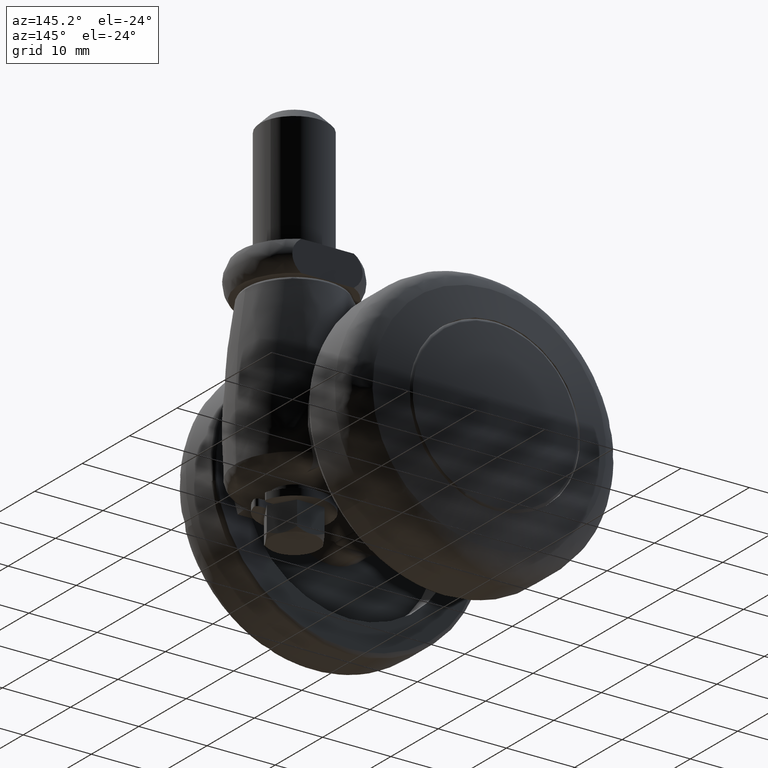
[diagram: clean part render]
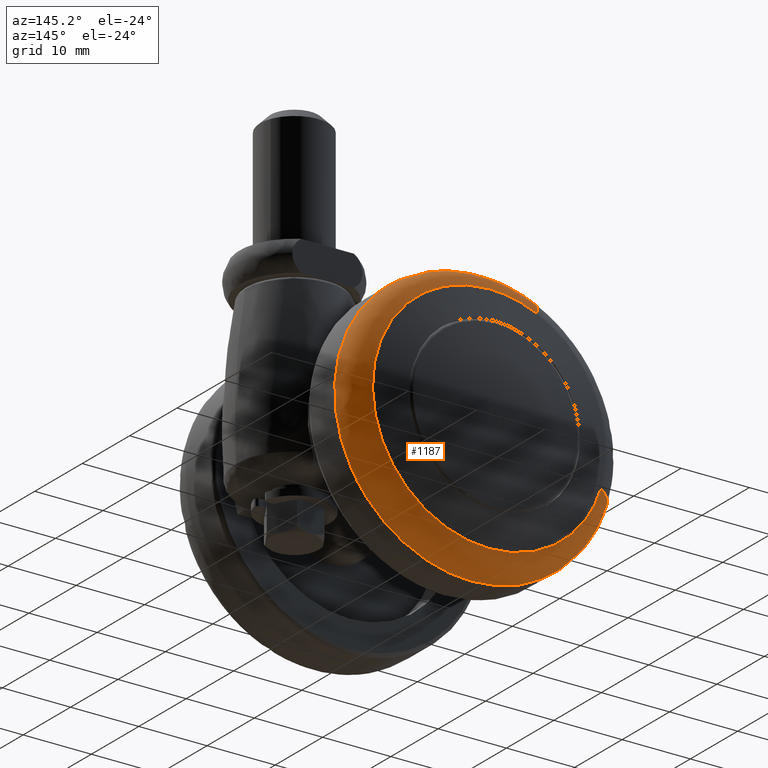
[diagram: same view with one face highlighted and labeled with its STEP entity id]
A machine part, auxiliary view. The second image highlights one B-rep face of the part: STEP entity #1187.
In plain terms, the highlighted face is a freeform B-spline surface patch.
Its self-contained STEP definition (entity closure, byte-faithful):
#260=CARTESIAN_POINT('',(-15.271114868145251,-15.710817000000009,-12.914838391706780));
#261=VERTEX_POINT('',#260);
#262=CARTESIAN_POINT('',(0.0,-15.710817000000000,-20.0));
#263=VERTEX_POINT('',#262);
#264=CARTESIAN_POINT('',(-15.271114868145244,-15.710817000000006,-12.914838391706779));
#265=CARTESIAN_POINT('',(-9.279167460225523,-15.710816999999997,-20.0));
#266=CARTESIAN_POINT('',(0.0,-15.710817000000000,-20.0));
#274=(BOUNDED_CURVE()B_SPLINE_CURVE(2,(#264,#265,#266),.UNSPECIFIED.,.F.,.U.)B_SPLINE_CURVE_WITH_KNOTS((3,3),(0.862408066207126,1.0),.UNSPECIFIED.)CURVE()GEOMETRIC_REPRESENTATION_ITEM()RATIONAL_B_SPLINE_CURVE((0.855039477330357,0.838801022514551,1.0))REPRESENTATION_ITEM(''));
#275=EDGE_CURVE('',#261,#263,#274,.T.);
#346=CARTESIAN_POINT('',(-13.767091412266200,-15.710817000000000,14.507487516668981));
#347=VERTEX_POINT('',#346);
#353=CARTESIAN_POINT('',(0.0,-15.710817000000000,20.0));
#354=VERTEX_POINT('',#353);
#355=CARTESIAN_POINT('',(0.0,-15.710817000000000,20.0));
#356=CARTESIAN_POINT('',(-7.979190757100615,-15.710816999999999,20.0));
#357=CARTESIAN_POINT('',(-13.767091412266199,-15.710817000000004,14.507487516668979));
#365=(BOUNDED_CURVE()B_SPLINE_CURVE(2,(#355,#356,#357),.UNSPECIFIED.,.F.,.U.)B_SPLINE_CURVE_WITH_KNOTS((3,3),(0.500000000000000,0.621049524545103),.UNSPECIFIED.)CURVE()GEOMETRIC_REPRESENTATION_ITEM()RATIONAL_B_SPLINE_CURVE((1.0,0.858181660480587,0.853699661525982))REPRESENTATION_ITEM(''));
#366=EDGE_CURVE('',#354,#347,#365,.T.);
#368=CARTESIAN_POINT('',(8.106151179094717,-15.710817000012330,18.283607769301479));
#369=VERTEX_POINT('',#368);
#370=CARTESIAN_POINT('',(8.106151179094717,-15.710817000012332,18.283607769301476));
#371=CARTESIAN_POINT('',(4.234789588247550,-15.710817000000008,20.000000000000004));
#372=CARTESIAN_POINT('',(0.0,-15.710817000000000,20.0));
#380=(BOUNDED_CURVE()B_SPLINE_CURVE(2,(#370,#371,#372),.UNSPECIFIED.,.F.,.U.)B_SPLINE_CURVE_WITH_KNOTS((3,3),(0.431175101877677,0.500000000000000),.UNSPECIFIED.)CURVE()GEOMETRIC_REPRESENTATION_ITEM()RATIONAL_B_SPLINE_CURVE((0.883129907828115,0.919366616217779,1.0))REPRESENTATION_ITEM(''));
#381=EDGE_CURVE('',#369,#354,#380,.T.);
#383=CARTESIAN_POINT('',(19.097290894932652,-15.710817000011010,-5.940831631541355));
#384=VERTEX_POINT('',#383);
#400=CARTESIAN_POINT('',(0.0,-15.710817000000000,-20.0));
#401=CARTESIAN_POINT('',(14.723730654580603,-15.710817000000008,-20.000000000000004));
#402=CARTESIAN_POINT('',(19.097290894932652,-15.710817000011009,-5.940831631541355));
#410=(BOUNDED_CURVE()B_SPLINE_CURVE(2,(#400,#401,#402),.UNSPECIFIED.,.F.,.U.)B_SPLINE_CURVE_WITH_KNOTS((3,3),(0.0,0.199458637681256),.UNSPECIFIED.)CURVE()GEOMETRIC_REPRESENTATION_ITEM()RATIONAL_B_SPLINE_CURVE((1.0,0.766319670357563,0.905515822342225))REPRESENTATION_ITEM(''));
#411=EDGE_CURVE('',#263,#384,#410,.T.);
#430=CARTESIAN_POINT('',(-13.767091412266199,-15.710817000000004,14.507487516668979));
#431=CARTESIAN_POINT('',(-20.000000000000007,-15.710817000000002,8.592678285270882));
#432=CARTESIAN_POINT('',(-20.0,-15.710817000000000,1.673897E-015));
#433=CARTESIAN_POINT('',(-20.0,-15.710817000000002,-7.323181271693098));
#434=CARTESIAN_POINT('',(-15.271114868145244,-15.710817000000006,-12.914838391706779));
#442=(BOUNDED_CURVE()B_SPLINE_CURVE(2,(#430,#431,#432,#433,#434),.UNSPECIFIED.,.F.,.U.)B_SPLINE_CURVE_WITH_KNOTS((3,2,3),(0.621049524545102,0.750000000000000,0.862408066207126),.UNSPECIFIED.)CURVE()GEOMETRIC_REPRESENTATION_ITEM()RATIONAL_B_SPLINE_CURVE((0.853699661525982,0.848925120705959,1.0,0.868305758671996,0.855039477330357))REPRESENTATION_ITEM(''));
#443=EDGE_CURVE('',#347,#261,#442,.T.);
#1070=CARTESIAN_POINT('',(8.103293421260737,-15.473506272734891,18.277167593805018));
#1071=CARTESIAN_POINT('',(7.044574368728646,-15.473506272734886,18.746557125269099));
#1072=CARTESIAN_POINT('',(5.938738749929503,-15.473506272734886,19.090563155212816));
#1073=CARTESIAN_POINT('',(-13.151824405283316,-15.473506272734880,25.029301905142322));
#1074=CARTESIAN_POINT('',(-19.090563155212816,-15.473506272734886,5.938738749929506));
#1075=CARTESIAN_POINT('',(-25.029301905142322,-15.473506272734880,-13.151824405283312));
#1076=CARTESIAN_POINT('',(-5.938738749929508,-15.473506272734886,-19.090563155212816));
#1077=CARTESIAN_POINT('',(13.151824405283310,-15.473506272734880,-25.029301905142322));
#1078=CARTESIAN_POINT('',(19.090563155212816,-15.473506272734886,-5.938738749929509));
#1079=CARTESIAN_POINT('',(8.184736673549736,-18.854524240904755,18.460864751748840));
#1080=CARTESIAN_POINT('',(7.115376821232174,-18.854524240904755,18.934971946519127));
#1081=CARTESIAN_POINT('',(5.998426851192127,-18.854524240904752,19.282435455839348));
#1082=CARTESIAN_POINT('',(-13.284008604647209,-18.854524240904752,25.280862307031470));
#1083=CARTESIAN_POINT('',(-19.282435455839348,-18.854524240904752,5.998426851192128));
#1084=CARTESIAN_POINT('',(-25.280862307031470,-18.854524240904752,-13.284008604647209));
#1085=CARTESIAN_POINT('',(-5.998426851192130,-18.854524240904752,-19.282435455839348));
#1086=CARTESIAN_POINT('',(13.284008604647207,-18.854524240904752,-25.280862307031470));
#1087=CARTESIAN_POINT('',(19.282435455839348,-18.854524240904752,-5.998426851192130));
#1088=CARTESIAN_POINT('',(6.846554960384098,-19.610033529778924,15.442564639559615));
#1089=CARTESIAN_POINT('',(5.952032473792589,-19.610033529778910,15.839156624809217));
#1090=CARTESIAN_POINT('',(5.017700721545523,-19.610033529778917,16.129810815429259));
#1091=CARTESIAN_POINT('',(-11.112110093883730,-19.610033529778917,21.147511536974783));
#1092=CARTESIAN_POINT('',(-16.129810815429259,-19.610033529778917,5.017700721545523));
#1093=CARTESIAN_POINT('',(-21.147511536974783,-19.610033529778917,-11.112110093883730));
#1094=CARTESIAN_POINT('',(-5.017700721545524,-19.610033529778917,-16.129810815429259));
#1095=CARTESIAN_POINT('',(11.112110093883729,-19.610033529778917,-21.147511536974783));
#1096=CARTESIAN_POINT('',(16.129810815429259,-19.610033529778917,-5.017700721545527));
#1104=(BOUNDED_SURFACE()B_SPLINE_SURFACE(2,2,((#1070,#1079,#1088),(#1071,#1080,#1089),(#1072,#1081,#1090),(#1073,#1082,#1091),(#1074,#1083,#1092),(#1075,#1084,#1093),(#1076,#1085,#1094),(#1077,#1086,#1095),(#1078,#1087,#1096)),.UNSPECIFIED.,.F.,.F.,.U.)B_SPLINE_SURFACE_WITH_KNOTS((3,2,2,2,3),(3,3),(0.0,2.650030369057069,35.775441573124318,68.900852777191560,102.026263981258790),(0.0,5.864054669396595),.UNSPECIFIED.)GEOMETRIC_REPRESENTATION_ITEM()RATIONAL_B_SPLINE_SURFACE(((0.875931295402799,0.669055804428544,0.877444316018333),(0.893948525565673,0.682817765536068,0.895492667846587),(0.915397605196631,0.699201049592773,0.916978797072457),(0.647283854116464,0.494409803579802,0.648401925614218),(0.915397605196631,0.699201049592773,0.916978797072457),(0.647283854116464,0.494409803579802,0.648401925614218),(0.915397605196631,0.699201049592773,0.916978797072457),(0.647283854116464,0.494409803579802,0.648401925614218),(0.915397605196631,0.699201049592773,0.916978797072457)))REPRESENTATION_ITEM('')SURFACE());
#1105=CARTESIAN_POINT('',(6.939526629149182,-19.550340798164449,15.652259646782330));
#1106=VERTEX_POINT('',#1105);
#1107=CARTESIAN_POINT('',(0.0,-19.550340798363852,17.121631401930902));
#1108=VERTEX_POINT('',#1107);
#1109=CARTESIAN_POINT('',(6.939526629149182,-19.550340798164445,15.652259646782326));
#1110=CARTESIAN_POINT('',(3.625325319773351,-19.550340798363852,17.121631401930895));
#1111=CARTESIAN_POINT('',(0.0,-19.550340798363852,17.121631401930902));
#1119=(BOUNDED_CURVE()B_SPLINE_CURVE(2,(#1109,#1110,#1111),.UNSPECIFIED.,.F.,.U.)B_SPLINE_CURVE_WITH_KNOTS((3,3),(0.431175101877016,0.500000000000000),.UNSPECIFIED.)CURVE()GEOMETRIC_REPRESENTATION_ITEM()RATIONAL_B_SPLINE_CURVE((0.883129907827419,0.919366616217005,1.0))REPRESENTATION_ITEM(''));
#1120=EDGE_CURVE('',#1106,#1108,#1119,.T.);
#1121=ORIENTED_EDGE('',*,*,#1120,.F.);
#1122=CARTESIAN_POINT('',(8.106151179094717,-15.710817000012325,18.283607769301472));
#1123=CARTESIAN_POINT('',(8.106151179082815,-18.709489489785938,18.283607769286522));
#1124=CARTESIAN_POINT('',(6.939526629149182,-19.550340798164452,15.652259646782326));
#1132=(BOUNDED_CURVE()B_SPLINE_CURVE(2,(#1122,#1123,#1124),.UNSPECIFIED.,.F.,.U.)B_SPLINE_CURVE_WITH_KNOTS((3,3),(-1.680154585393021,-0.314372153540852),.UNSPECIFIED.)CURVE()GEOMETRIC_REPRESENTATION_ITEM()RATIONAL_B_SPLINE_CURVE((0.857997957398444,0.687057807109639,0.859373527142891))REPRESENTATION_ITEM(''));
#1133=EDGE_CURVE('',#369,#1106,#1132,.T.);
#1134=ORIENTED_EDGE('',*,*,#1133,.F.);
#1135=ORIENTED_EDGE('',*,*,#381,.T.);
#1136=ORIENTED_EDGE('',*,*,#366,.T.);
#1137=ORIENTED_EDGE('',*,*,#443,.T.);
#1138=ORIENTED_EDGE('',*,*,#275,.T.);
#1139=ORIENTED_EDGE('',*,*,#411,.T.);
#1140=CARTESIAN_POINT('',(16.348838775546369,-19.550340797852179,-5.085836471491918));
#1141=VERTEX_POINT('',#1140);
#1142=CARTESIAN_POINT('',(19.097290894932655,-15.710817000011009,-5.940831631541356));
#1143=CARTESIAN_POINT('',(19.097290894917084,-18.709489488045861,-5.940831631535788));
#1144=CARTESIAN_POINT('',(16.348838775546362,-19.550340797852172,-5.085836471491918));
#1152=(BOUNDED_CURVE()B_SPLINE_CURVE(2,(#1142,#1143,#1144),.UNSPECIFIED.,.F.,.U.)B_SPLINE_CURVE_WITH_KNOTS((3,3),(-1.680154585393769,-0.314372154175284),.UNSPECIFIED.)CURVE()GEOMETRIC_REPRESENTATION_ITEM()RATIONAL_B_SPLINE_CURVE((0.896656290741251,0.718014185938952,0.898093838593625))REPRESENTATION_ITEM(''));
#1153=EDGE_CURVE('',#384,#1141,#1152,.T.);
#1154=ORIENTED_EDGE('',*,*,#1153,.T.);
#1155=CARTESIAN_POINT('',(0.0,-19.550340798363852,-17.121631401930902));
#1156=VERTEX_POINT('',#1155);
#1157=CARTESIAN_POINT('',(0.0,-19.550340798363852,-17.121631401930902));
#1158=CARTESIAN_POINT('',(12.604714456189592,-19.550340798363848,-17.121631401930898));
#1159=CARTESIAN_POINT('',(16.348838775546366,-19.550340797852176,-5.085836471491918));
#1167=(BOUNDED_CURVE()B_SPLINE_CURVE(2,(#1157,#1158,#1159),.UNSPECIFIED.,.F.,.U.)B_SPLINE_CURVE_WITH_KNOTS((3,3),(0.0,0.199458637678074),.UNSPECIFIED.)CURVE()GEOMETRIC_REPRESENTATION_ITEM()RATIONAL_B_SPLINE_CURVE((1.0,0.766319670361291,0.905515822337783))REPRESENTATION_ITEM(''));
#1168=EDGE_CURVE('',#1156,#1141,#1167,.T.);
#1169=ORIENTED_EDGE('',*,*,#1168,.F.);
#1170=CARTESIAN_POINT('',(0.0,-19.550340798363852,17.121631401930902));
#1171=CARTESIAN_POINT('',(-17.121631401930909,-19.550340798363848,17.121631401930909));
#1172=CARTESIAN_POINT('',(-17.121631401930902,-19.550340798363852,1.673897E-015));
#1173=CARTESIAN_POINT('',(-17.121631401930909,-19.550340798363848,-17.121631401930909));
#1174=CARTESIAN_POINT('',(0.0,-19.550340798363852,-17.121631401930902));
#1182=(BOUNDED_CURVE()B_SPLINE_CURVE(2,(#1170,#1171,#1172,#1173,#1174),.UNSPECIFIED.,.F.,.U.)B_SPLINE_CURVE_WITH_KNOTS((3,2,3),(0.500000000000000,0.750000000000000,1.0),.UNSPECIFIED.)CURVE()GEOMETRIC_REPRESENTATION_ITEM()RATIONAL_B_SPLINE_CURVE((1.0,0.707106781186548,1.0,0.707106781186548,1.0))REPRESENTATION_ITEM(''));
#1183=EDGE_CURVE('',#1108,#1156,#1182,.T.);
#1184=ORIENTED_EDGE('',*,*,#1183,.F.);
#1185=EDGE_LOOP('',(#1121,#1134,#1135,#1136,#1137,#1138,#1139,#1154,#1169,#1184));
#1186=FACE_OUTER_BOUND('',#1185,.T.);
#1187=ADVANCED_FACE('',(#1186),#1104,.T.);